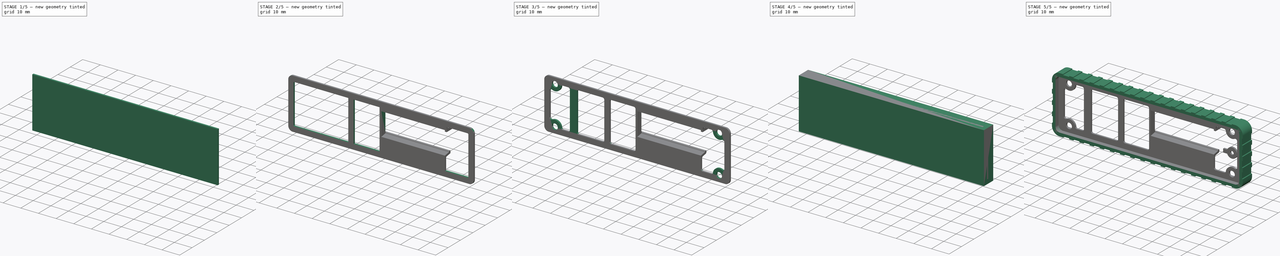
[diagram: build sequence overview — one tinted view per stage of 5, left to right]
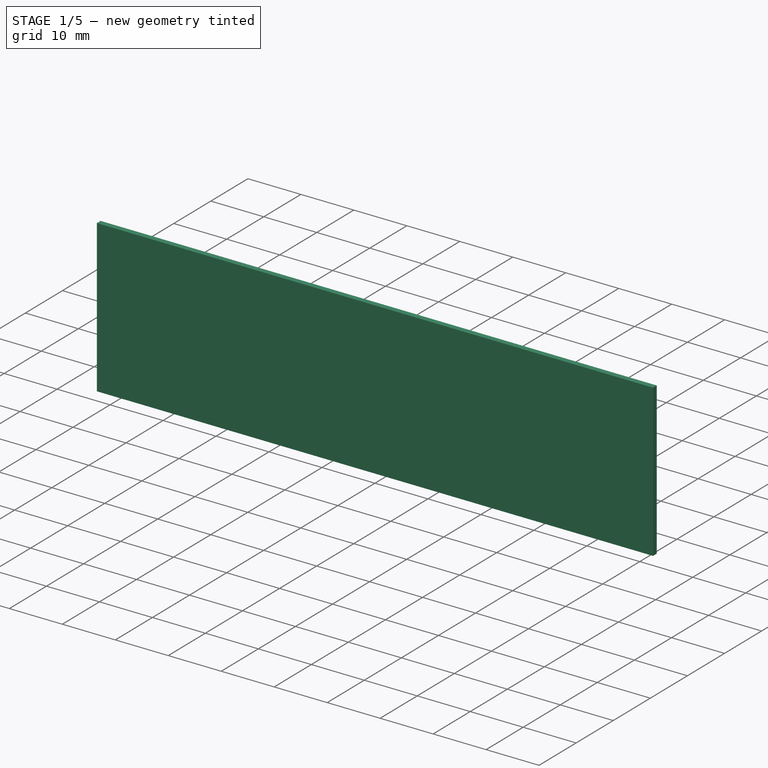
[diagram: stage 1 of 5 — iso view after this stage's code; geometry added in this stage tinted green]
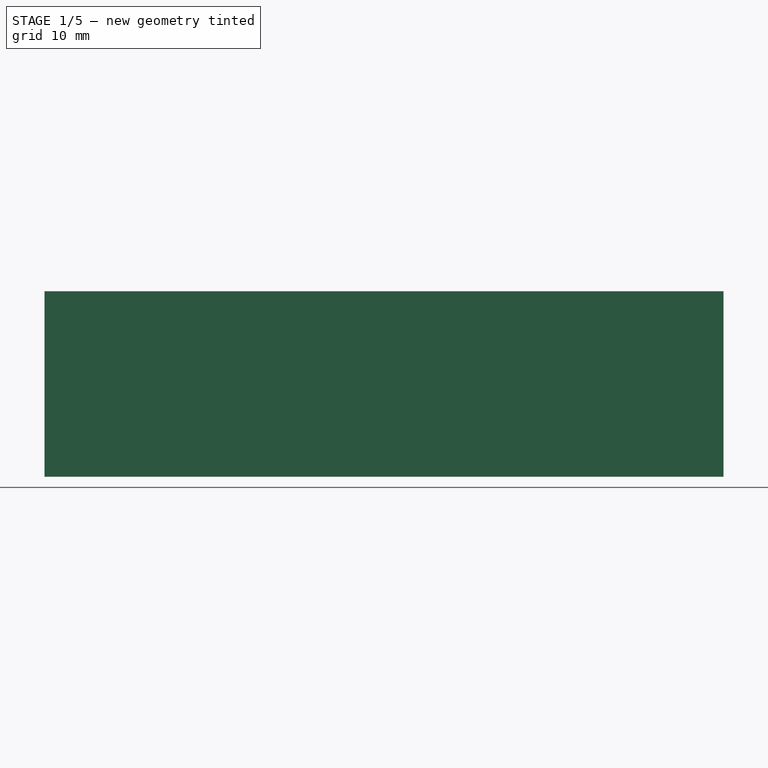
[diagram: stage 1 of 5 — front view after this stage's code; geometry added in this stage tinted green]
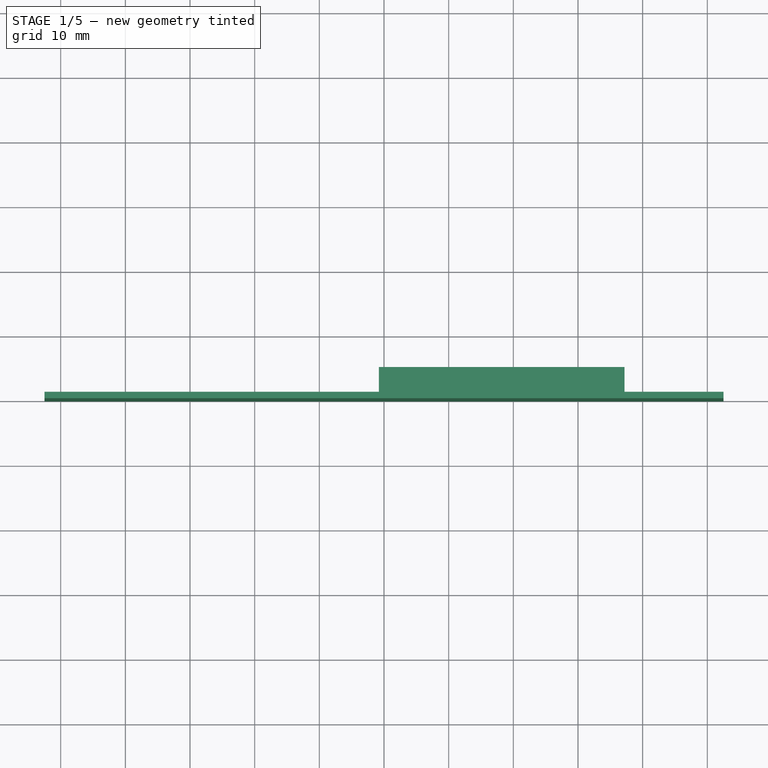
[diagram: stage 1 of 5 — top view after this stage's code; geometry added in this stage tinted green]
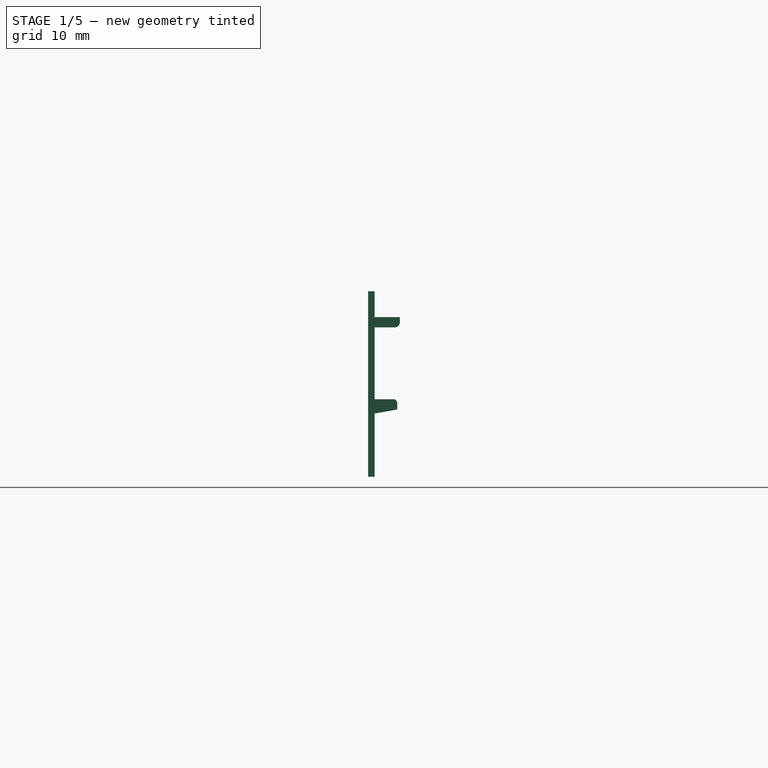
[diagram: stage 1 of 5 — right view after this stage's code; geometry added in this stage tinted green]
FCSTD DOCUMENT  (FreeCAD 0.19R24267 +99 (Git))
Label: OTP20_Case_Bezel
License: All rights reserved
LicenseURL: http://en.wikipedia.org/wiki/All_rights_reserved
objects: Sketcher::SketchObject×15, PartDesign::Pad×13, PartDesign::Body×5, PartDesign::Fillet×5, PartDesign::Plane×4, PartDesign::LinearPattern×4, PartDesign::Mirrored×3, PartDesign::MultiTransform×3, PartDesign::Thickness×2, PartDesign::Pocket×2, PartDesign::Hole×2, PartDesign::CoordinateSystem×1, PartDesign::Boolean×1, PartDesign::Chamfer×1, App::Part×1
note: 86 computed .brp shape members not serialized (recipe doc carries the construction recipe); baked Part::Feature solids carry a one-line shape summary decoded from their .brp

FEATURE [PartDesign::Plane] DatumPlane001  label="Display Start"
  AttachmentOffset = pos=(0,0,0.2) rot=(0,0,1;0rad)
  Length = 60
  MapMode = 5
  Placement = pos=(0.2,0,0) rot=(0.57735,0.57735,0.57735;2.0944rad)
  ResizeMode = 0
  Support = -> [YZ_Plane004]
  Width = 60
FEATURE [Sketcher::SketchObject] Sketch006  label="Sketch007"
  FullyConstrained = true
  MapMode = 5
  Placement = pos=(0.2,0,0) rot=(0.57735,0.57735,0.57735;2.0944rad)
  Support = -> [DatumPlane001]
  sketch-geometry (7):
    g0: LineSegment StartX=1 StartY=14.35 StartZ=0 EndX=1 EndY=10.35 EndZ=0
    g1: ArcOfCircle CenterX=4.1 CenterY=9.55 CenterZ=0 NormalX=0 NormalY=0 NormalZ=1 AngleXU=0 Radius=0.8 StartAngle=3.14159 EndAngle=6.28319
    g2: LineSegment StartX=3.3 StartY=9.55 StartZ=0 EndX=0 EndY=9.55 EndZ=0
    g3: LineSegment StartX=0 StartY=9.55 StartZ=0 EndX=0 EndY=14.35 EndZ=0
    g4: LineSegment StartX=0 StartY=14.35 StartZ=0 EndX=1 EndY=14.35 EndZ=0
    g5: LineSegment StartX=1 StartY=10.35 StartZ=0 EndX=4.9 EndY=10.35 EndZ=0
    g6: LineSegment StartX=4.9 StartY=10.35 StartZ=0 EndX=4.9 EndY=9.55 EndZ=0
  constraints (22):
    c: Vertical(g0)
    c: Coincident(g2,g3)
    c: Coincident(g3,g4)
    c: Coincident(g4,g0)
    c: Distance(g4) = 1
    c: Horizontal(g4)
    c: Radius(g1) = 0.8
    c: DistanceY(g0) = 14.35
    c: Horizontal(g1,g1)
    c: Horizontal(g1,g1)
    c: Vertical(g3)
    c: Horizontal(g2)
    c: Coincident(g0,g5)
    c: Horizontal(g5)
    c: Coincident(g5,g6)
    c: Coincident(g6,g1)
    c: Vertical(g6)
    c: Distance(g6) = 0.8
    c: Coincident(g2,g1)
    c: DistanceX(g1) = 3.3
    c: PointOnObject(g2,g-2)
    c: DistanceY(g1) = 9.55
FEATURE [Sketcher::SketchObject] Sketch007  label="Sketch008"
  FullyConstrained = true
  MapMode = 5
  Placement = pos=(0.2,0,0) rot=(0.57735,0.57735,0.57735;2.0944rad)
  Support = -> [DatumPlane001]
  sketch-geometry (7):
    g0: LineSegment StartX=1 StartY=-14.35 StartZ=0 EndX=1 EndY=-4.56714 EndZ=0
    g1: LineSegment StartX=1 StartY=-4.56714 StartZ=0 EndX=4.5 EndY=-3.95 EndZ=0
    g2: LineSegment StartX=4.5 StartY=-3.95 StartZ=0 EndX=4.5 EndY=-2.95 EndZ=0
    g3: ArcOfCircle CenterX=3.9 CenterY=-2.95 CenterZ=0 NormalX=0 NormalY=0 NormalZ=1 AngleXU=0 Radius=0.6 StartAngle=0 EndAngle=3.14159
    g4: LineSegment StartX=3.3 StartY=-2.95 StartZ=0 EndX=0 EndY=-3.53188 EndZ=0
    g5: LineSegment StartX=0 StartY=-3.53188 StartZ=0 EndX=0 EndY=-14.35 EndZ=0
    g6: LineSegment StartX=0 StartY=-14.35 StartZ=0 EndX=1 EndY=-14.35 EndZ=0
  constraints (21):
    c: Vertical(g0)
    c: Coincident(g0,g1)
    c: Coincident(g1,g2)
    c: Tangent(g2,g3) = -1.5708
    c: Coincident(g3,g4)
    c: PointOnObject(g4,g-2)
    c: Coincident(g4,g5)
    c: PointOnObject(g5,g-2)
    c: Coincident(g5,g6)
    c: Coincident(g6,g0)
    c: Horizontal(g6)
    c: Distance(g6) = 1
    c: Radius(g3) = 0.6
    c: Vertical(g2)
    c: Distance(g2) = 1
    c: DistanceX(g3) = 3.3
    c: DistanceY(g3) = -2.95
    c: DistanceY(g5) = -14.35
    c: Horizontal(g3,g3)
    c: Parallel(g4,g1)
    c: Angle(g-1,g4) = 0.174533
FEATURE [Sketcher::SketchObject] Sketch008  label="Sketch009"
  FullyConstrained = true
  MapMode = 5
  Placement = pos=(0.2,0,0) rot=(0.57735,0.57735,0.57735;2.0944rad)
  Support = -> [DatumPlane001]
  expr: Constraints[19] = Sketch006.Constraints[19] + Sketch006.Constraints[6]
  expr: Constraints[14] = Sketch006.Constraints[17]
  expr: Constraints[5] = Sketch006.Constraints[6]
  expr: Constraints[6] = Sketch006.Constraints[7]
  expr: Constraints[3] = Sketch006.Constraints[4]
  expr: Constraints[20] = Sketch006.Constraints[21]
  sketch-geometry (7):
    g0: LineSegment StartX=1 StartY=14.35 StartZ=0 EndX=1 EndY=10.35 EndZ=0
    g1: ArcOfCircle CenterX=4.1 CenterY=9.55 CenterZ=0 NormalX=0 NormalY=0 NormalZ=1 AngleXU=0 Radius=0.8 StartAngle=4.71239 EndAngle=6.28319
    g2: LineSegment StartX=0 StartY=8.75 StartZ=0 EndX=0 EndY=14.35 EndZ=0
    g3: LineSegment StartX=0 StartY=14.35 StartZ=0 EndX=1 EndY=14.35 EndZ=0
    g4: LineSegment StartX=1 StartY=10.35 StartZ=0 EndX=4.9 EndY=10.35 EndZ=0
    g5: LineSegment StartX=4.9 StartY=10.35 StartZ=0 EndX=4.9 EndY=9.55 EndZ=0
    g6: LineSegment StartX=0 StartY=8.75 StartZ=0 EndX=4.1 EndY=8.75 EndZ=0
  constraints (21):
    c: Vertical(g0)
    c: Coincident(g2,g3)
    c: Coincident(g3,g0)
    c: Distance(g3) = 1
    c: Horizontal(g3)
    c: Radius(g1) = 0.8
    c: DistanceY(g0) = 14.35
    c: Horizontal(g1,g1)
    c: Vertical(g2)
    c: Coincident(g0,g4)
    c: Horizontal(g4)
    c: Coincident(g4,g5)
    c: Coincident(g5,g1)
    c: Vertical(g5)
    c: Distance(g5) = 0.8
    c: PointOnObject(g2,g-2)
    c: Coincident(g6,g2)
    c: Horizontal(g6)
    c: Tangent(g1,g6) = -1.5708
    c: DistanceX(g1) = 4.1
    c: DistanceY(g1) = 9.55
FEATURE [PartDesign::Plane] DatumPlane002  label="Display End"
  AttachmentOffset = pos=(0,0,36) rot=(0,0,1;0rad)
  Length = 60
  MapMode = 5
  Placement = pos=(36.2,-4e-15,4e-15) rot=(0.57735,0.57735,0.57735;2.0944rad)
  ResizeMode = 0
  Support = -> [DatumPlane001]
  Width = 60
FEATURE [PartDesign::Pad] Pad006
  Direction = (1,1,1)
  Length = 36
  Length2 = 36
  Placement = pos=(0.2,0,0) rot=(0.57735,0.57735,0.57735;2.0944rad)
  Profile = -> Sketch006
  Refine = true
  Type = 3
  UpToFace = -> DatumPlane002 [Plane]
FEATURE [PartDesign::Pad] Pad007
  Direction = (1,1,1)
  Length = 36
  Length2 = 100
  Placement = pos=(0.2,0,0) rot=(0.57735,0.57735,0.57735;2.0944rad)
  Profile = -> Sketch007
  Refine = true
  Type = 3
  UpToFace = -> DatumPlane002 [Plane]
FEATURE [PartDesign::Pad] Pad008
  BaseFeature = -> Pad006
  Direction = (1,1,1)
  Length = 1
  Length2 = 100
  Placement = pos=(0.2,0,0) rot=(0.57735,0.57735,0.57735;2.0944rad)
  Profile = -> Sketch008
  Refine = true
  Reversed = true
  Type = 0
FEATURE [PartDesign::Plane] DatumPlane003  label="Display Symmetry"
  AttachmentOffset = pos=(0,0,18) rot=(0,0,1;0rad)
  Length = 60
  MapMode = 5
  Placement = pos=(18.2,-2e-15,2e-15) rot=(0.57735,0.57735,0.57735;2.0944rad)
  ResizeMode = 0
  Support = -> [DatumPlane001]
  Width = 60
  expr: .AttachmentOffset.Base.z = <<Display End>>.AttachmentOffset.Base[2] * 0.5
FEATURE [PartDesign::Mirrored] Mirrored002
  BaseFeature = -> Pad008
  MirrorPlane = -> DatumPlane003
  Originals = -> [Pad008]
  Placement = pos=(0.2,0,0) rot=(0.57735,0.57735,0.57735;2.0944rad)
  Refine = true
FEATURE [PartDesign::Body] Body003  label="Display Frame Top"
  Group = -> [Sketch006,Pad006,Sketch008,Pad008,DatumPlane001,DatumPlane002,DatumPlane003,Mirrored002]
  Origin = -> Origin004
  Tip = -> Mirrored002
FEATURE [Sketcher::SketchObject] Sketch009  label="Sketch010"
  FullyConstrained = true
  MapMode = 5
  Placement = pos=(0.2,0,0) rot=(0.57735,0.57735,0.57735;2.0944rad)
  Support = -> [DatumPlane001]
  expr: Constraints[4] = Sketch007.Constraints[14]
  expr: Constraints[2] = Sketch007.Constraints[12]
  expr: Constraints[5] = Sketch007.Constraints[11]
  expr: Constraints[6] = Sketch007.Constraints[20]
  expr: Constraints[11] = Sketch007.Constraints[15] + Sketch007.Constraints[12]
  expr: Constraints[13] = Sketch007.Constraints[16]
  expr: Constraints[19] = Sketch007.Constraints[17]
  sketch-geometry (7):
    g0: LineSegment StartX=1 StartY=-4.56714 StartZ=0 EndX=4.5 EndY=-3.95 EndZ=0
    g1: LineSegment StartX=4.5 StartY=-3.95 StartZ=0 EndX=4.5 EndY=-2.95 EndZ=0
    g2: ArcOfCircle CenterX=3.9 CenterY=-2.95 CenterZ=0 NormalX=0 NormalY=0 NormalZ=1 AngleXU=0 Radius=0.6 StartAngle=0 EndAngle=1.5708
    g3: LineSegment StartX=3.9 StartY=-2.35 StartZ=0 EndX=0 EndY=-2.35 EndZ=0
    g4: LineSegment StartX=0 StartY=-2.35 StartZ=0 EndX=0 EndY=-14.35 EndZ=0
    g5: LineSegment StartX=0 StartY=-14.35 StartZ=0 EndX=1 EndY=-14.35 EndZ=0
    g6: LineSegment StartX=1 StartY=-14.35 StartZ=0 EndX=1 EndY=-4.56714 EndZ=0
  constraints (20):
    c: Coincident(g0,g1)
    c: Tangent(g1,g2) = -1.5708
    c: Radius(g2) = 0.6
    c: Vertical(g1)
    c: Distance(g1) = 1
    c: DistanceX(g0) = 1
    c: Angle(g-1,g0) = 0.174533
    c: PointOnObject(g3,g-2)
    c: Horizontal(g3)
    c: Coincident(g3,g4)
    c: PointOnObject(g4,g-2)
    c: DistanceX(g2) = 3.9
    c: Tangent(g2,g3) = -1.5708
    c: DistanceY(g2) = -2.95
    c: Coincident(g4,g5)
    c: Horizontal(g5)
    c: Coincident(g5,g6)
    c: Coincident(g6,g0)
    c: Vertical(g6)
    c: DistanceY(g4) = -14.35
FEATURE [PartDesign::Pad] Pad009
  BaseFeature = -> Pad007
  Direction = (1,1,1)
  Length = 1
  Length2 = 100
  Placement = pos=(0.2,0,0) rot=(0.57735,0.57735,0.57735;2.0944rad)
  Profile = -> Sketch009
  Refine = true
  Reversed = true
  Type = 0
FEATURE [PartDesign::Body] Body001  label="Outer Frame"
  Group = -> [Pad001,Pad002,Fillet001,Thickness001,DatumPlane,Sketch,Pocket,MultiTransform,LinearPattern,Mirrored,Sketch001,Pocket001,MultiTransform001,LinearPattern001,Mirrored001,Sketch013]
  Origin = -> Origin001
  Tip = -> MultiTransform001
FEATURE [Sketcher::SketchObject] Sketch014
  FullyConstrained = true
  MapMode = 5
  Placement = pos=(0,0,0) rot=(1,0,0;1.5708rad)
  Support = -> [XZ_Plane]
  expr: Constraints[8] = Sketch012.Constraints[8]
  expr: Constraints[9] = Sketch012.Constraints[9]
  sketch-geometry (4):
    g0: LineSegment StartX=-52.5 StartY=-14.35 StartZ=0 EndX=52.5 EndY=-14.35 EndZ=0
    g1: LineSegment StartX=52.5 StartY=-14.35 StartZ=0 EndX=52.5 EndY=14.35 EndZ=0
    g2: LineSegment StartX=52.5 StartY=14.35 StartZ=0 EndX=-52.5 EndY=14.35 EndZ=0
    g3: LineSegment StartX=-52.5 StartY=14.35 StartZ=0 EndX=-52.5 EndY=-14.35 EndZ=0
  constraints (10):
    c: Coincident(g0,g1)
    c: Coincident(g1,g2)
    c: Coincident(g2,g3)
    c: Coincident(g3,g0)
    c: Horizontal(g0)
    c: Vertical(g1)
    c: Symmetric(g2,g0,g-1)
    c: Symmetric(g2,g1,g-2)
    c: Distance(g2) = 105
    c: Distance(g3) = 28.7
FEATURE [PartDesign::Pad] Pad
  Direction = (1,1,1)
  Length = 1
  Length2 = 100
  Placement = pos=(0,0,0) rot=(1,0,0;1.5708rad)
  Profile = -> Sketch014
  Refine = true
  Reversed = true
  Type = 0
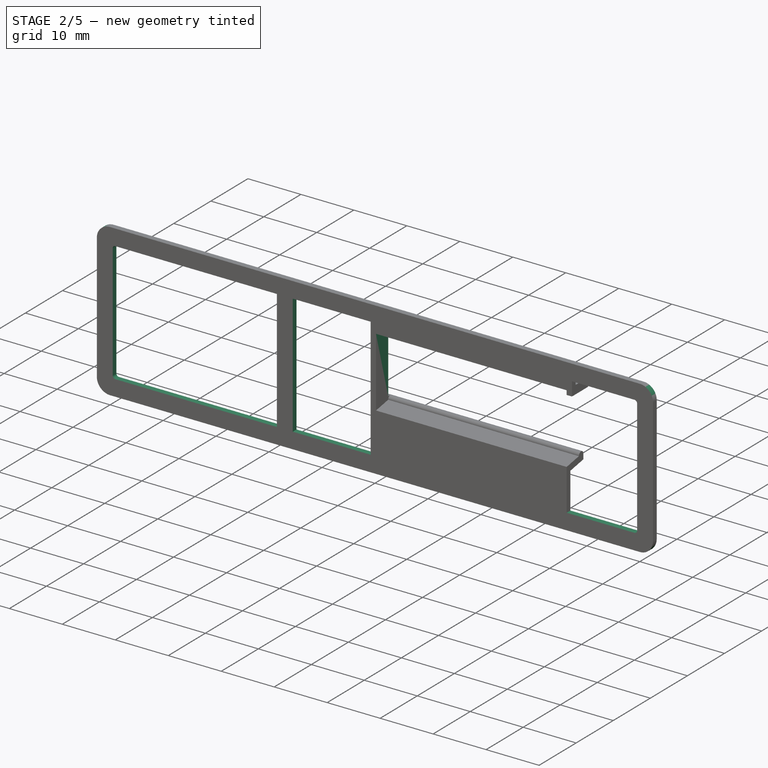
[diagram: stage 2 of 5 — iso view after this stage's code; geometry added in this stage tinted green]
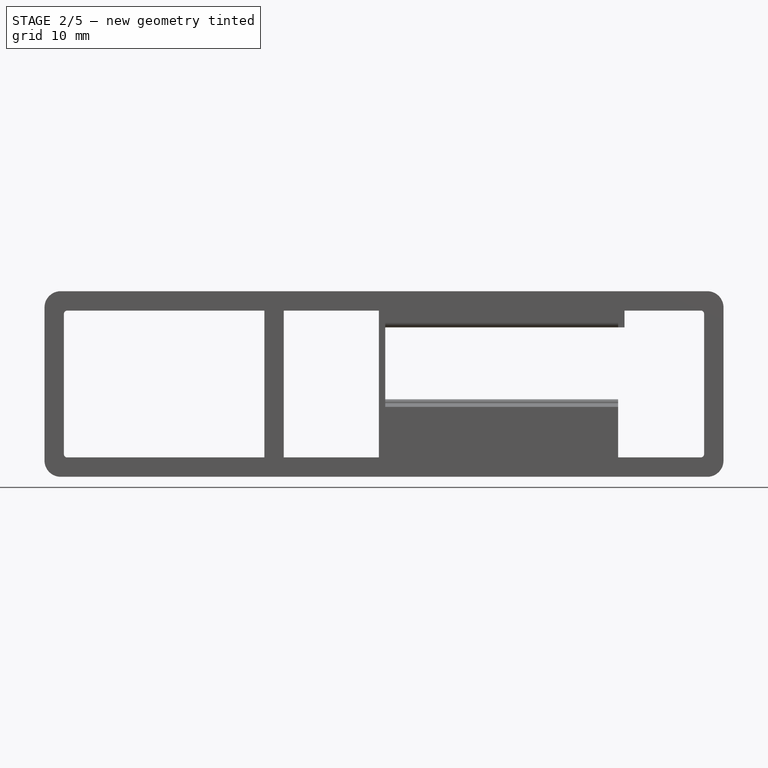
[diagram: stage 2 of 5 — front view after this stage's code; geometry added in this stage tinted green]
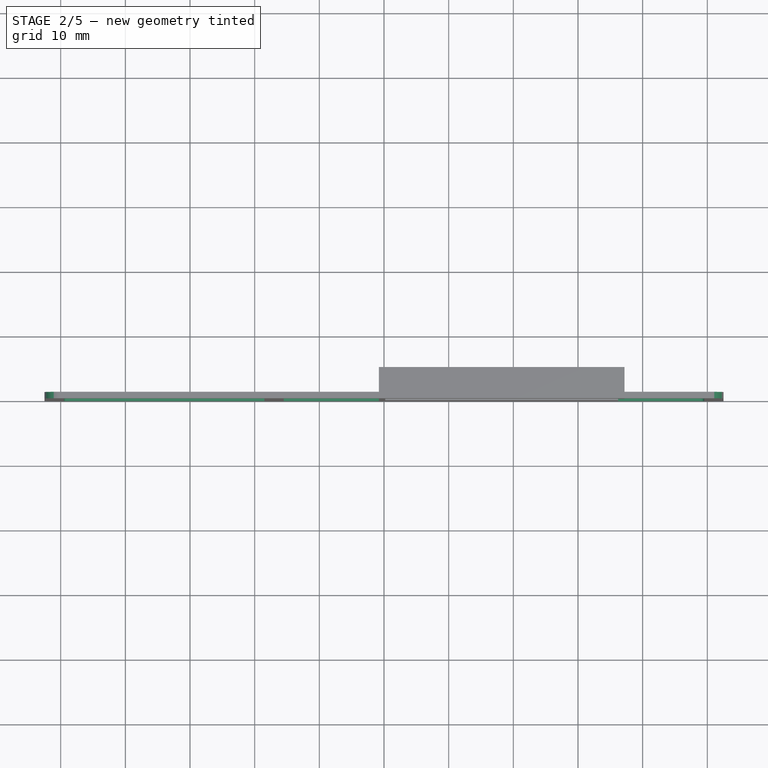
[diagram: stage 2 of 5 — top view after this stage's code; geometry added in this stage tinted green]
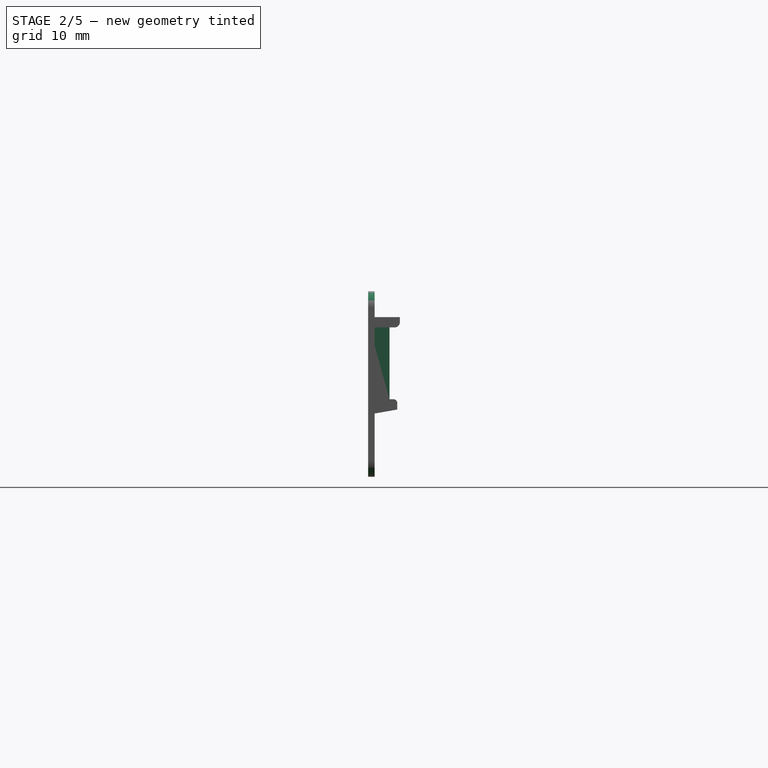
[diagram: stage 2 of 5 — right view after this stage's code; geometry added in this stage tinted green]
FEATURE [PartDesign::Thickness] Thickness
  Base = -> Pad [Face5,Face6]
  BaseFeature = -> Pad
  Intersection = false
  Join = 0
  Mode = 0
  Refine = true
  Reversed = true
  SupportTransform = false
  Value = 3
FEATURE [PartDesign::Fillet] Fillet
  Base = -> Thickness [Edge17,Edge19,Edge23,Edge24]
  BaseFeature = -> Thickness
  Radius = 0.5
  Refine = true
  SupportTransform = false
FEATURE [PartDesign::Fillet] Fillet003
  Base = -> Fillet [Edge32,Edge29,Edge34,Edge30]
  BaseFeature = -> Fillet
  Radius = 2.5
  Refine = true
  SupportTransform = false
FEATURE [PartDesign::Boolean] Boolean
  BaseFeature = -> Fillet003
  Group = -> [Body003,Body004]
  Refine = true
  Type = 0
FEATURE [PartDesign::Pad] Pad010
  BaseFeature = -> Boolean
  Direction = (1,1,1)
  Length = 1
  Length2 = 100
  Profile = -> Sketch010
  Refine = true
  Reversed = true
  Type = 0
FEATURE [PartDesign::Pad] Pad011
  BaseFeature = -> Pad010
  Direction = (1,1,1)
  Length = 1
  Length2 = 100
  Profile = -> Sketch011
  Refine = true
  Reversed = true
  Type = 0
  expr: Length = Pad.Length
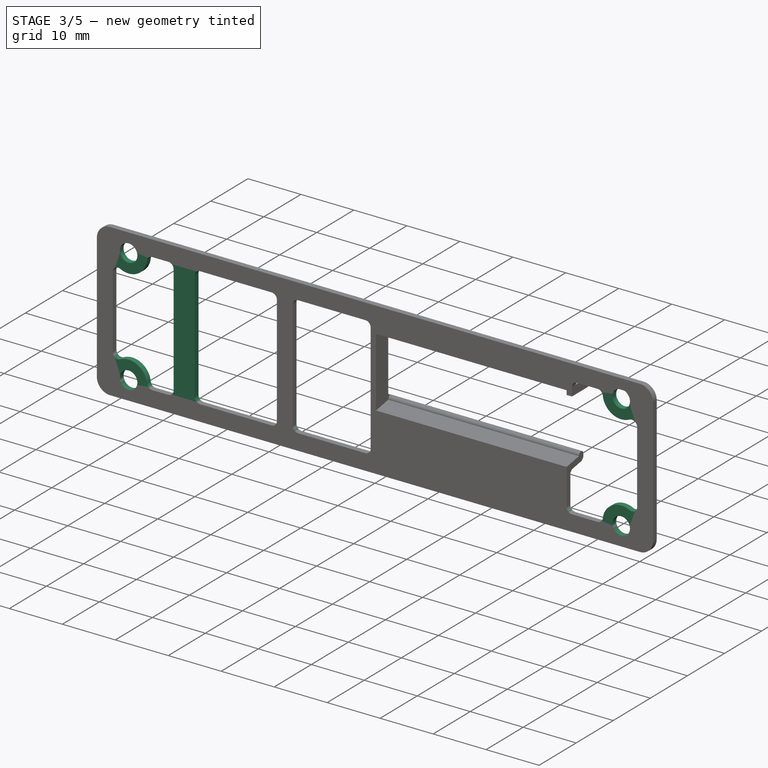
[diagram: stage 3 of 5 — iso view after this stage's code; geometry added in this stage tinted green]
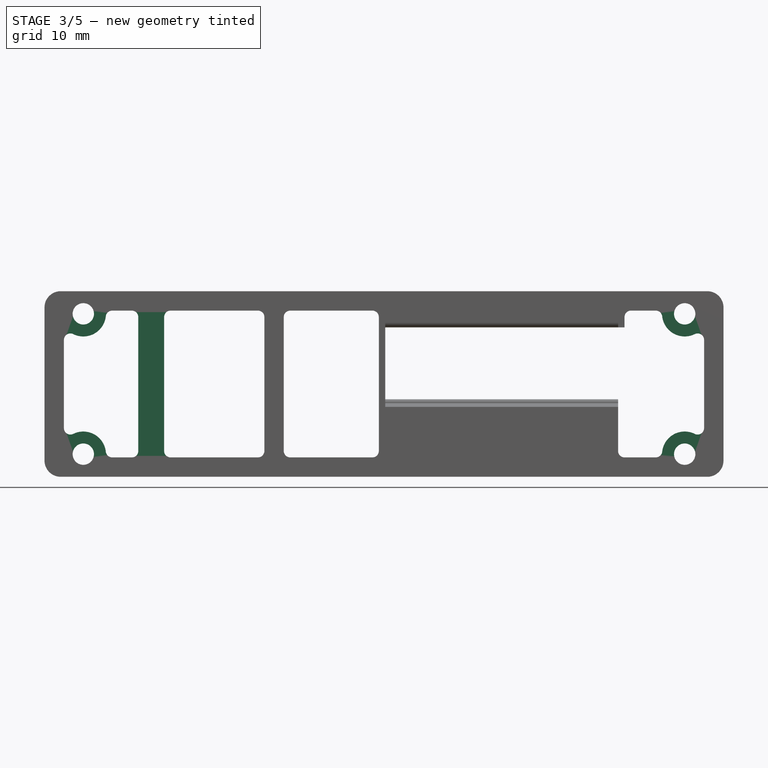
[diagram: stage 3 of 5 — front view after this stage's code; geometry added in this stage tinted green]
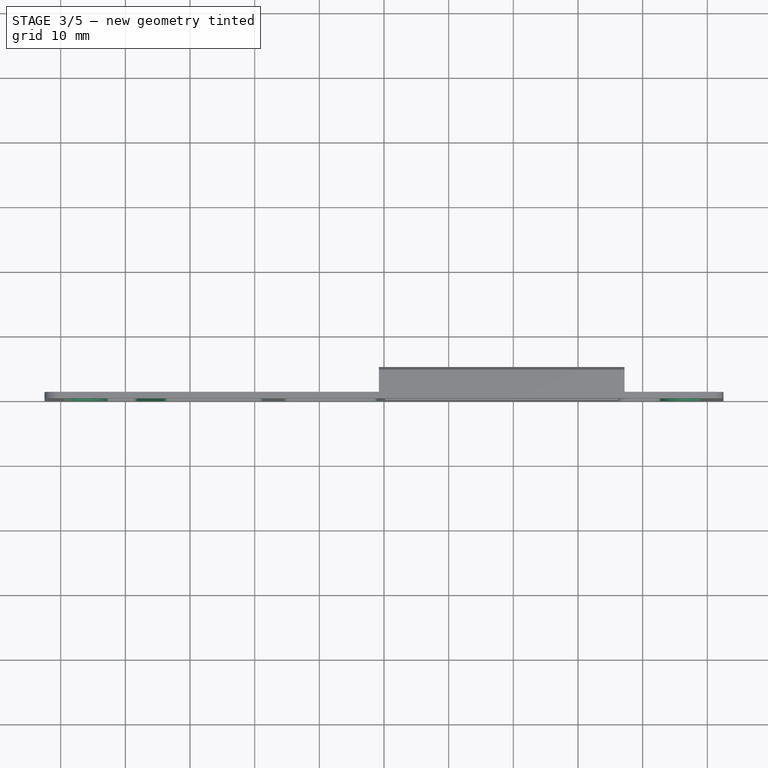
[diagram: stage 3 of 5 — top view after this stage's code; geometry added in this stage tinted green]
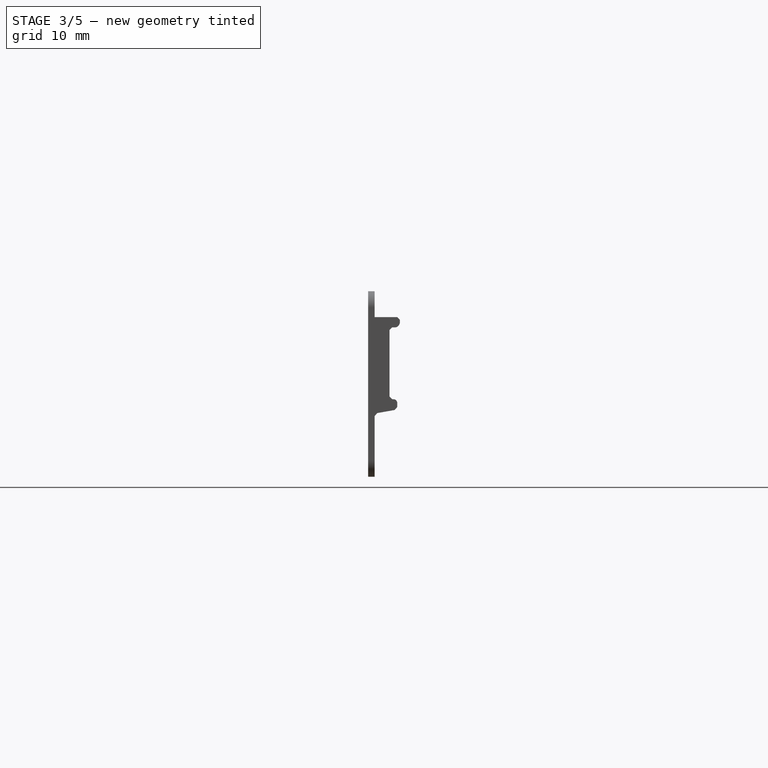
[diagram: stage 3 of 5 — right view after this stage's code; geometry added in this stage tinted green]
FEATURE [PartDesign::Chamfer] Chamfer001
  Angle = 45
  Base = -> Pad011 [Edge81,Edge80,Edge106,Edge104,Edge105]
  BaseFeature = -> Pad011
  ChamferType = 0
  FlipDirection = false
  Refine = true
  Size = 0.4
  Size2 = 1
  SupportTransform = false
FEATURE [PartDesign::Body] Body002  label="Button"
  Group = -> [Sketch004,Sketch005,Pad004,Pad005,Hole]
  Origin = -> Origin003
  Tip = -> Hole
FEATURE [Sketcher::SketchObject] Sketch015
  FullyConstrained = true
  MapMode = 5
  Placement = pos=(0,0,0) rot=(1,0,0;1.5708rad)
  Support = -> [XZ_Plane]
  sketch-geometry (5):
    g0: LineSegment StartX=-38 StartY=14.35 StartZ=0 EndX=-34 EndY=14.35 EndZ=0
    g1: LineSegment StartX=-34 StartY=14.35 StartZ=0 EndX=-34 EndY=-14.35 EndZ=0
    g2: LineSegment StartX=-34 StartY=-14.35 StartZ=0 EndX=-38 EndY=-14.35 EndZ=0
    g3: LineSegment StartX=-38 StartY=-14.35 StartZ=0 EndX=-38 EndY=14.35 EndZ=0
    g4: GeomPoint X=-36 Y=0 Z=0
  constraints (13):
    c: Coincident(g0,g1)
    c: Coincident(g1,g2)
    c: Coincident(g2,g3)
    c: Coincident(g3,g0)
    c: Horizontal(g0)
    c: Horizontal(g2)
    c: Vertical(g1)
    c: Vertical(g3)
    c: PointOnObject(g4,g-1)
    c: Symmetric(g0,g1,g4)
    c: DistanceX(g4) = -36
    c: Distance(g2) = 4
    c: Distance(g3) = 28.7
FEATURE [PartDesign::Pad] Pad012
  BaseFeature = -> Chamfer001
  Direction = (1,1,1)
  Length = 1
  Length2 = 100
  Profile = -> Sketch015
  Refine = true
  Reversed = true
  Type = 0
FEATURE [Sketcher::SketchObject] Sketch016
  FullyConstrained = true
  MapMode = 5
  Placement = pos=(0,0,0) rot=(1,0,0;1.5708rad)
  Support = -> [XZ_Plane]
  sketch-geometry (1):
    g0: Circle CenterX=46.5 CenterY=10.85 CenterZ=0 NormalX=0 NormalY=0 NormalZ=1 AngleXU=0 Radius=3.5
  constraints (3):
    c: Radius(g0) = 3.5
    c: DistanceX(g0) = 46.5
    c: DistanceY(g0) = 10.85
FEATURE [PartDesign::Pad] Pad013
  BaseFeature = -> Pad012
  Direction = (1,1,1)
  Length = 1
  Length2 = 100
  Profile = -> Sketch016
  Refine = true
  Reversed = true
  Type = 0
FEATURE [PartDesign::LinearPattern] LinearPattern002
  Direction = -> Z_Axis
  Length = 21.7
  Occurrences = 2
  Refine = true
  Reversed = true
FEATURE [PartDesign::LinearPattern] LinearPattern003
  Direction = -> X_Axis
  Length = 93
  Occurrences = 2
  Refine = true
  Reversed = true
FEATURE [PartDesign::Hole] Hole001
  BaseFeature = -> Pad013
  Depth = 25
  DepthType = 1
  Diameter = 3.3
  DrillForDepth = false
  DrillPoint = 1
  DrillPointAngle = 118
  HoleCutCountersinkAngle = 90
  HoleCutCustomValues = false
  HoleCutDepth = 0
  HoleCutDiameter = 6.1
  HoleCutType = 0
  ModelActualThread = false
  Profile = -> Sketch016
  Refine = true
  Tapered = false
  TaperedAngle = 90
  ThreadAngle = 0
  ThreadClass = 0
  ThreadCutOffInner = 0
  ThreadCutOffOuter = 0
  ThreadDirection = 0
  ThreadFit = 0
  ThreadPitch = 0
  ThreadSize = 0
  ThreadType = 0
  Threaded = false
FEATURE [PartDesign::MultiTransform] MultiTransform002
  BaseFeature = -> Hole001
  Originals = -> [Pad013,Hole001]
  Refine = true
  Transformations = -> [LinearPattern002,LinearPattern003]
FEATURE [PartDesign::Fillet] Fillet004
  Base = -> MultiTransform002 [Edge148,Edge157,Edge160,Edge151,Edge149,Edge146,Edge140,Edge142,Edge143,Edge138,Edge70,Edge81,Edge61,Edge63,Edge87,Edge91,Edge89,Edge122,Edge121,Edge92]
  BaseFeature = -> MultiTransform002
  Radius = 1
  Refine = true
  SupportTransform = false
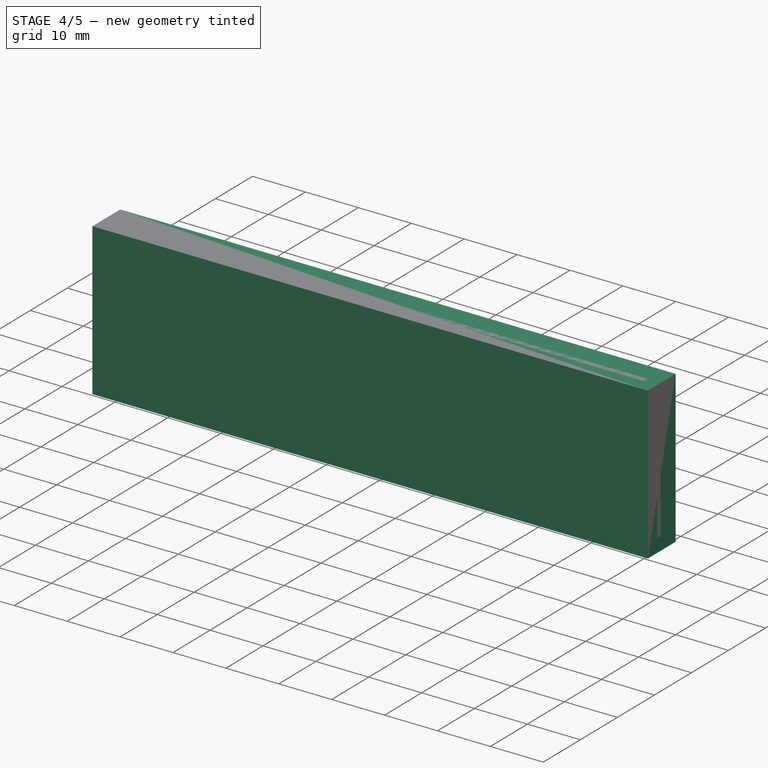
[diagram: stage 4 of 5 — iso view after this stage's code; geometry added in this stage tinted green]
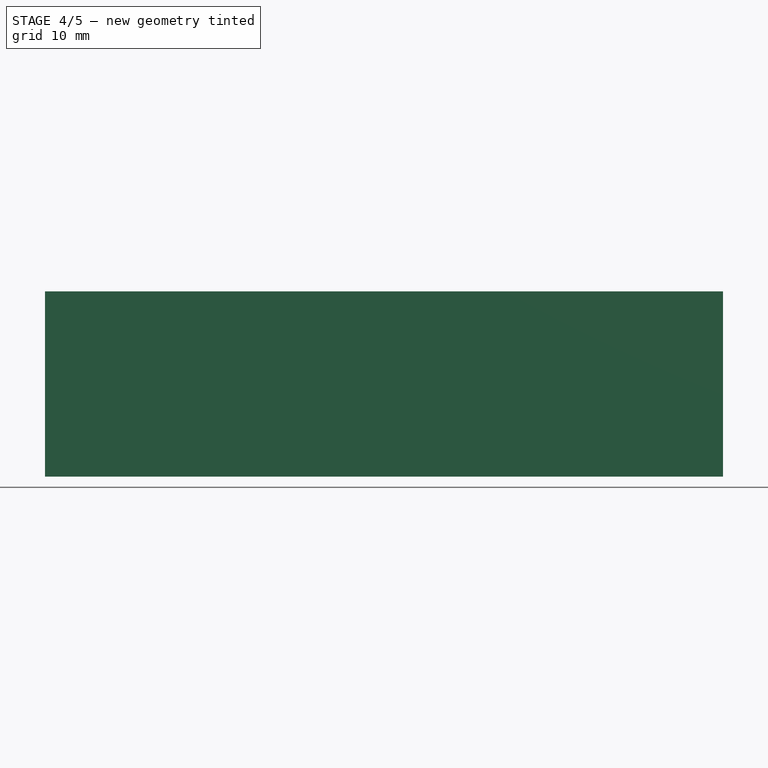
[diagram: stage 4 of 5 — front view after this stage's code; geometry added in this stage tinted green]
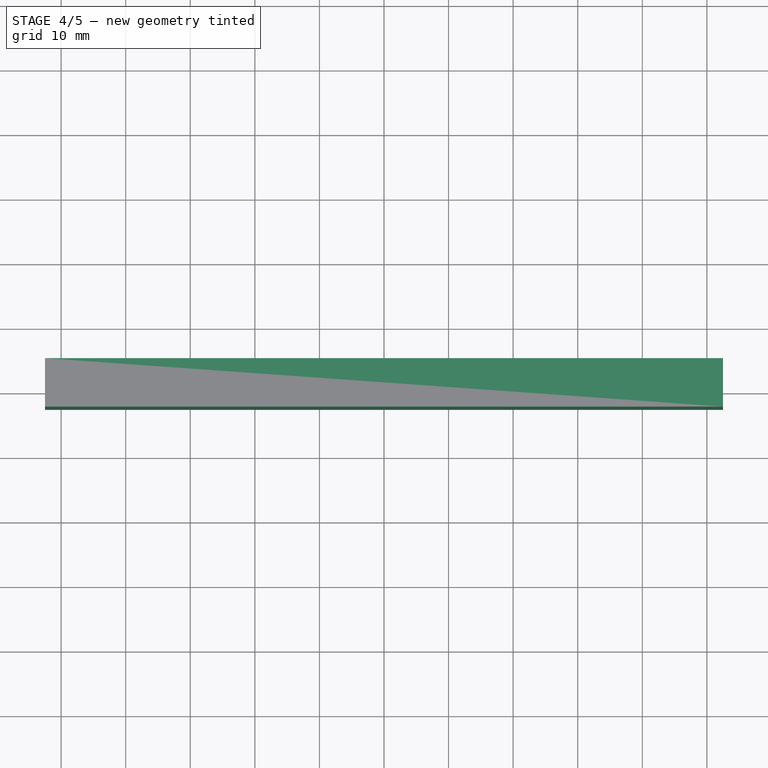
[diagram: stage 4 of 5 — top view after this stage's code; geometry added in this stage tinted green]
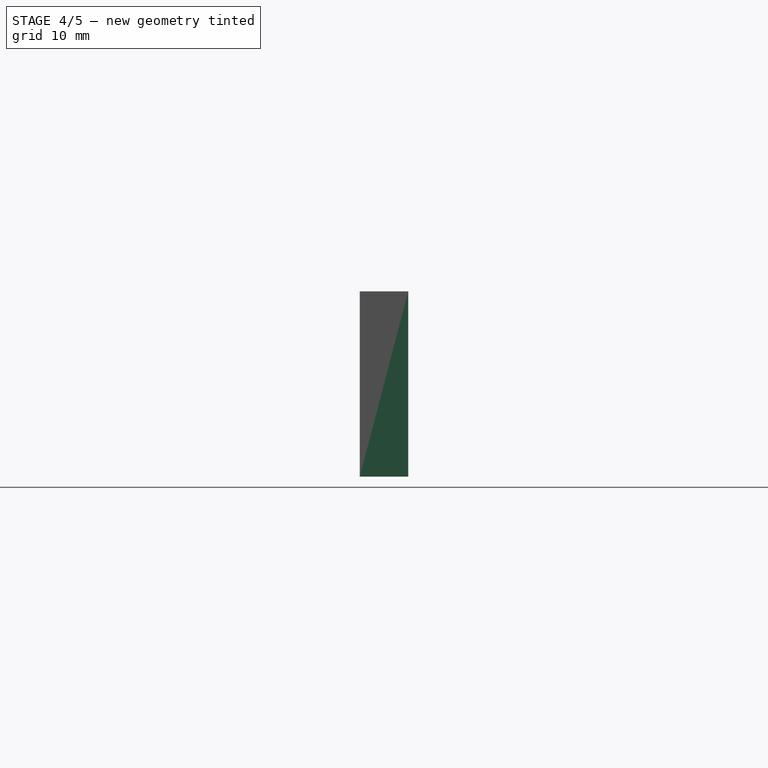
[diagram: stage 4 of 5 — right view after this stage's code; geometry added in this stage tinted green]
FEATURE [PartDesign::Plane] DatumPlane
  AttachmentOffset = pos=(0,0,2.5) rot=(0,0,1;0rad)
  Length = 60
  MapMode = 2
  Placement = pos=(0,-2.5,-6e-16) rot=(1,0,0;1.5708rad)
  ResizeMode = 0
  Support = -> [XZ_Plane001]
  Width = 60
  expr: .AttachmentOffset.Base.z = Pad002.Length
FEATURE [Sketcher::SketchObject] Sketch  label="Sketch001"
  FullyConstrained = true
  MapMode = 5
  Placement = pos=(0,-2.5,-6e-16) rot=(1,0,0;1.5708rad)
  Support = -> [DatumPlane]
  sketch-geometry (6):
    g0: LineSegment StartX=55 StartY=6.95 StartZ=0 EndX=55 EndY=10.45 EndZ=0
    g1: LineSegment StartX=55 StartY=10.45 StartZ=0 EndX=54.2 EndY=10.45 EndZ=0
    g2: ArcOfCircle CenterX=54.2 CenterY=10.25 CenterZ=0 NormalX=0 NormalY=0 NormalZ=1 AngleXU=0 Radius=0.2 StartAngle=1.5708 EndAngle=3.14159
    g3: LineSegment StartX=54 StartY=10.25 StartZ=0 EndX=54 EndY=7.15 EndZ=0
    g4: ArcOfCircle CenterX=54.2 CenterY=7.15 CenterZ=0 NormalX=0 NormalY=0 NormalZ=1 AngleXU=0 Radius=0.2 StartAngle=3.14159 EndAngle=4.71239
    g5: LineSegment StartX=54.2 StartY=6.95 StartZ=0 EndX=55 EndY=6.95 EndZ=0
  constraints (16):
    c: Vertical(g0)
    c: Coincident(g0,g1)
    c: Horizontal(g1)
    c: Tangent(g1,g2) = -1.5708
    c: Tangent(g3,g4) = -1.5708
    c: Coincident(g5,g0)
    c: Vertical(g3)
    c: Tangent(g4,g5) = -1.5708
    c: Tangent(g2,g3) = -1.5708
    c: Horizontal(g5)
    c: Vertical(g2,g4)
    c: Radius(g4) = 0.2
    c: Distance(g0,g3) = 1
    c: Distance(g0) = 3.5
    c: Distance(g-1,g5) = 6.95
    c: Distance(g-1,g3) = 54
FEATURE [PartDesign::LinearPattern] LinearPattern
  Direction = -> Sketch [V_Axis]
  Length = 17.4
  Occurrences = 4
  Refine = true
  Reversed = true
FEATURE [PartDesign::Mirrored] Mirrored
  MirrorPlane = -> Sketch [V_Axis]
  Refine = true
FEATURE [Sketcher::SketchObject] Sketch001  label="Sketch002"
  FullyConstrained = true
  MapMode = 5
  Placement = pos=(0,-2.5,-6e-16) rot=(1,0,0;1.5708rad)
  Support = -> [DatumPlane]
  sketch-geometry (6):
    g0: LineSegment StartX=44.65 StartY=16.85 StartZ=0 EndX=44.65 EndY=16.05 EndZ=0
    g1: ArcOfCircle CenterX=44.85 CenterY=16.05 CenterZ=0 NormalX=0 NormalY=0 NormalZ=1 AngleXU=0 Radius=0.2 StartAngle=3.14159 EndAngle=4.71239
    g2: LineSegment StartX=44.85 StartY=15.85 StartZ=0 EndX=47.95 EndY=15.85 EndZ=0
    g3: ArcOfCircle CenterX=47.95 CenterY=16.05 CenterZ=0 NormalX=0 NormalY=0 NormalZ=1 AngleXU=0 Radius=0.2 StartAngle=4.71239 EndAngle=6.28319
    g4: LineSegment StartX=48.15 StartY=16.05 StartZ=0 EndX=48.15 EndY=16.85 EndZ=0
    g5: LineSegment StartX=48.15 StartY=16.85 StartZ=0 EndX=44.65 EndY=16.85 EndZ=0
  constraints (16):
    c: Vertical(g0)
    c: Tangent(g0,g1) = -1.5708
    c: Tangent(g1,g2) = -1.5708
    c: Tangent(g2,g3) = -1.5708
    c: Tangent(g3,g4) = -1.5708
    c: Coincident(g4,g5)
    c: Coincident(g5,g0)
    c: Horizontal(g5)
    c: Horizontal(g2)
    c: Vertical(g4)
    c: Horizontal(g1,g3)
    c: Radius(g3) = 0.2
    c: Distance(g0,g2) = 1
    c: Distance(g5) = 3.5
    c: Distance(g-1,g2) = 15.85
    c: Distance(g-1,g0) = 44.65
FEATURE [PartDesign::LinearPattern] LinearPattern001
  Direction = -> Sketch001 [H_Axis]
  Length = 92.8
  Occurrences = 17
  Refine = true
  Reversed = true
FEATURE [PartDesign::Mirrored] Mirrored001
  MirrorPlane = -> Sketch001 [H_Axis]
  Refine = true
FEATURE [PartDesign::CoordinateSystem] LCS_0  label="LCS_Bezel_Center"
  AttacherType = Attacher::AttachEngine3D
  MapMode = 2
  Support = -> [X_Axis002]
FEATURE [Sketcher::SketchObject] Sketch004  label="Sketch005"
  FullyConstrained = true
  MapMode = 5
  Placement = pos=(0,0,0) rot=(1,0,0;1.5708rad)
  Support = -> [XZ_Plane003]
  sketch-geometry (1):
    g0: Circle CenterX=46.5 CenterY=0 CenterZ=0 NormalX=0 NormalY=0 NormalZ=1 AngleXU=0 Radius=2.9
  constraints (3):
    c: PointOnObject(g0,g-1)
    c: Radius(g0) = 2.9
    c: DistanceX(g0) = 46.5
FEATURE [Sketcher::SketchObject] Sketch005  label="Sketch006"
  FullyConstrained = true
  MapMode = 5
  Placement = pos=(0,0,0) rot=(1,0,0;1.5708rad)
  Support = -> [XZ_Plane003]
  sketch-geometry (5):
    g0: LineSegment StartX=41.5 StartY=1 StartZ=0 EndX=50.5 EndY=1 EndZ=0
    g1: LineSegment StartX=50.5 StartY=1 StartZ=0 EndX=50.5 EndY=-1 EndZ=0
    g2: LineSegment StartX=50.5 StartY=-1 StartZ=0 EndX=41.5 EndY=-1 EndZ=0
    g3: LineSegment StartX=41.5 StartY=-1 StartZ=0 EndX=41.5 EndY=1 EndZ=0
    g4: GeomPoint X=46 Y=0 Z=0
  constraints (13):
    c: Coincident(g0,g1)
    c: Coincident(g1,g2)
    c: Coincident(g2,g3)
    c: Coincident(g3,g0)
    c: Horizontal(g0)
    c: Horizontal(g2)
    c: Vertical(g1)
    c: Vertical(g3)
    c: PointOnObject(g4,g-1)
    c: Symmetric(g0,g1,g4)
    c: Distance(g1) = 2
    c: DistanceX(g0) = 50.5
    c: Distance(g2) = 9
FEATURE [PartDesign::Pad] Pad004
  Direction = (1,1,1)
  Length = 1
  Length2 = 100
  Placement = pos=(0,0,0) rot=(1,0,0;1.5708rad)
  Profile = -> Sketch005
  Refine = true
  Reversed = true
  Type = 0
FEATURE [PartDesign::Pad] Pad005
  BaseFeature = -> Pad004
  Direction = (1,1,1)
  Length = 1
  Length2 = 100
  Placement = pos=(0,0,0) rot=(1,0,0;1.5708rad)
  Profile = -> Sketch004
  Refine = true
  Reversed = true
  Type = 0
FEATURE [PartDesign::Body] Body004  label="Display Frame Bottom"
  Group = -> [Sketch007,Pad007,Pad009,Sketch009]
  Origin = -> Origin005
  Tip = -> Pad009
FEATURE [Sketcher::SketchObject] Sketch010  label="Sketch011"
  FullyConstrained = true
  MapMode = 5
  Placement = pos=(0.2,0,0) rot=(0.57735,0.57735,0.57735;2.0944rad)
  Support = -> [DatumPlane001]
  expr: Constraints[9] = Sketch007.Constraints[16]
  expr: Constraints[10] = Sketch006.Constraints[21]
  expr: Constraints[11] = Sketch006.Constraints[19]
  sketch-geometry (4):
    g0: LineSegment StartX=0 StartY=9.55 StartZ=0 EndX=3.3 EndY=9.55 EndZ=0
    g1: LineSegment StartX=3.3 StartY=9.55 StartZ=0 EndX=3.3 EndY=-2.95 EndZ=0
    g2: LineSegment StartX=3.3 StartY=-2.95 StartZ=0 EndX=0 EndY=-2.95 EndZ=0
    g3: LineSegment StartX=0 StartY=-2.95 StartZ=0 EndX=0 EndY=9.55 EndZ=0
  constraints (12):
    c: Coincident(g0,g1)
    c: Coincident(g1,g2)
    c: Coincident(g2,g3)
    c: Coincident(g3,g0)
    c: Horizontal(g0)
    c: Horizontal(g2)
    c: Vertical(g1)
    c: Vertical(g3)
    c: PointOnObject(g0,g-2)
    c: DistanceY(g1) = -2.95
    c: DistanceY(g0) = 9.55
    c: DistanceX(g0) = 3.3
FEATURE [Sketcher::SketchObject] Sketch011  label="Sketch012"
  FullyConstrained = true
  MapMode = 5
  Placement = pos=(0,0,0) rot=(1,0,0;1.5708rad)
  Support = -> [XZ_Plane]
  sketch-geometry (5):
    g0: LineSegment StartX=-18.5 StartY=13.7 StartZ=0 EndX=-15.5 EndY=13.7 EndZ=0
    g1: LineSegment StartX=-15.5 StartY=13.7 StartZ=0 EndX=-15.5 EndY=-13.7 EndZ=0
    g2: LineSegment StartX=-15.5 StartY=-13.7 StartZ=0 EndX=-18.5 EndY=-13.7 EndZ=0
    g3: LineSegment StartX=-18.5 StartY=-13.7 StartZ=0 EndX=-18.5 EndY=13.7 EndZ=0
    g4: GeomPoint X=-17 Y=0 Z=0
  constraints (13):
    c: Coincident(g0,g1)
    c: Coincident(g1,g2)
    c: Coincident(g2,g3)
    c: Coincident(g3,g0)
    c: Horizontal(g0)
    c: Horizontal(g2)
    c: Vertical(g1)
    c: Vertical(g3)
    c: PointOnObject(g4,g-1)
    c: Symmetric(g0,g1,g4)
    c: Distance(g3) = 27.4
    c: Distance(g2) = 3
    c: DistanceX(g4) = -17
FEATURE [Sketcher::SketchObject] Sketch012  label="Case Outline"
  FullyConstrained = true
  MapMode = 5
  Placement = pos=(0,0,0) rot=(1,0,0;1.5708rad)
  Support = -> [XZ_Plane002]
  sketch-geometry (4):
    g0: LineSegment StartX=-52.5 StartY=-14.35 StartZ=0 EndX=52.5 EndY=-14.35 EndZ=0
    g1: LineSegment StartX=52.5 StartY=-14.35 StartZ=0 EndX=52.5 EndY=14.35 EndZ=0
    g2: LineSegment StartX=52.5 StartY=14.35 StartZ=0 EndX=-52.5 EndY=14.35 EndZ=0
    g3: LineSegment StartX=-52.5 StartY=14.35 StartZ=0 EndX=-52.5 EndY=-14.35 EndZ=0
  constraints (10):
    c: Coincident(g0,g1)
    c: Coincident(g1,g2)
    c: Coincident(g2,g3)
    c: Coincident(g3,g0)
    c: Horizontal(g0)
    c: Vertical(g1)
    c: Symmetric(g2,g0,g-1)
    c: Symmetric(g2,g1,g-2)
    c: Distance(g2) = 105
    c: Distance(g3) = 28.7
FEATURE [Sketcher::SketchObject] Sketch013
  FullyConstrained = true
  MapMode = 5
  Placement = pos=(0,0,0) rot=(1,0,0;1.5708rad)
  Support = -> [XZ_Plane001]
  expr: Constraints[8] = Sketch012.Constraints[8]
  expr: Constraints[9] = Sketch012.Constraints[9]
  sketch-geometry (4):
    g0: LineSegment StartX=-52.5 StartY=-14.35 StartZ=0 EndX=52.5 EndY=-14.35 EndZ=0
    g1: LineSegment StartX=52.5 StartY=-14.35 StartZ=0 EndX=52.5 EndY=14.35 EndZ=0
    g2: LineSegment StartX=52.5 StartY=14.35 StartZ=0 EndX=-52.5 EndY=14.35 EndZ=0
    g3: LineSegment StartX=-52.5 StartY=14.35 StartZ=0 EndX=-52.5 EndY=-14.35 EndZ=0
  constraints (10):
    c: Coincident(g0,g1)
    c: Coincident(g1,g2)
    c: Coincident(g2,g3)
    c: Coincident(g3,g0)
    c: Horizontal(g0)
    c: Vertical(g1)
    c: Symmetric(g2,g0,g-1)
    c: Symmetric(g2,g1,g-2)
    c: Distance(g2) = 105
    c: Distance(g3) = 28.7
FEATURE [PartDesign::Pad] Pad001
  Direction = (1,1,1)
  Length = 5
  Length2 = 100
  Placement = pos=(0,0,0) rot=(1,0,0;1.5708rad)
  Profile = -> Sketch013
  Refine = true
  Reversed = true
  Type = 0
FEATURE [PartDesign::Pad] Pad002
  BaseFeature = -> Pad001
  Direction = (1,1,1)
  Length = 2.5
  Length2 = 100
  Placement = pos=(0,0,0) rot=(1,0,0;1.5708rad)
  Profile = -> Sketch013
  Refine = true
  Type = 0
FEATURE [PartDesign::Hole] Hole
  BaseFeature = -> Pad005
  Depth = 25
  DepthType = 1
  Diameter = 2
  DrillForDepth = false
  DrillPoint = 1
  DrillPointAngle = 118
  HoleCutCountersinkAngle = 90
  HoleCutCustomValues = false
  HoleCutDepth = 0
  HoleCutDiameter = 6.1
  HoleCutType = 0
  ModelActualThread = false
  Placement = pos=(0,0,0) rot=(1,0,0;1.5708rad)
  Profile = -> Sketch004
  Refine = true
  Tapered = false
  TaperedAngle = 90
  ThreadAngle = 0
  ThreadClass = 0
  ThreadCutOffInner = 0
  ThreadCutOffOuter = 0
  ThreadDirection = 0
  ThreadFit = 0
  ThreadPitch = 0
  ThreadSize = 0
  ThreadType = 0
  Threaded = false
FEATURE [PartDesign::Fillet] Fillet005
  Base = -> Fillet004 [Edge100,Edge113,Edge110]
  BaseFeature = -> Fillet004
  Radius = 0.2
  Refine = true
  SupportTransform = false
FEATURE [PartDesign::Body] Body  label="Inner Frame"
  Group = -> [Pad,Thickness,Fillet,Fillet003,Boolean,Sketch010,Pad010,Sketch011,Pad011,Chamfer001,Sketch014,Sketch015,Pad012,Sketch016,Pad013,Hole001,MultiTransform002,LinearPattern002,LinearPattern003,Fillet004,Fillet005]
  Origin = -> Origin
  Tip = -> Fillet005
FEATURE [App::Part] Bezel
  Group = -> [LCS_0,Body001,Body,Sketch012,Body002]
  Origin = -> Origin002
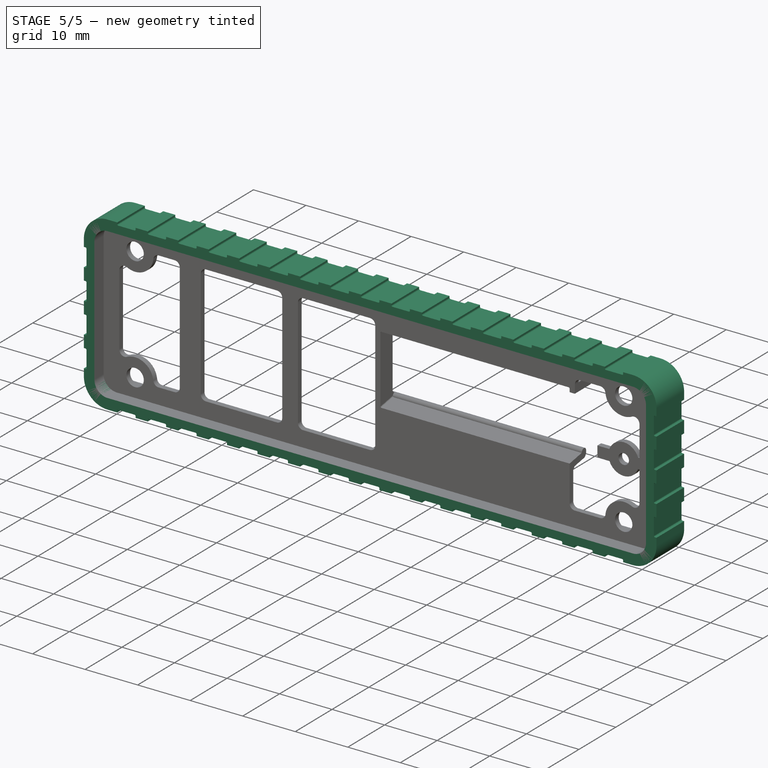
[diagram: stage 5 of 5 — iso view after this stage's code; geometry added in this stage tinted green]
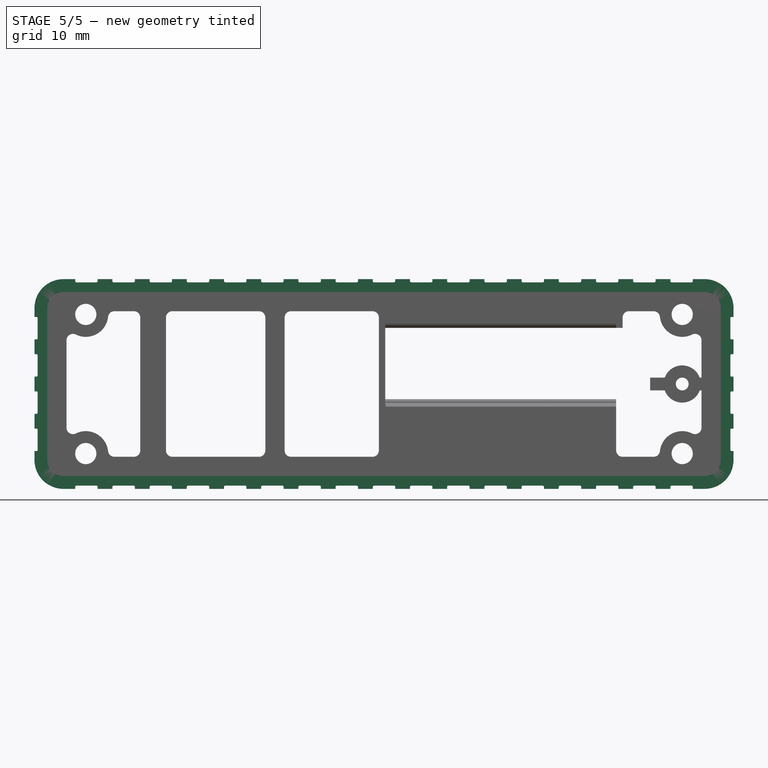
[diagram: stage 5 of 5 — front view after this stage's code; geometry added in this stage tinted green]
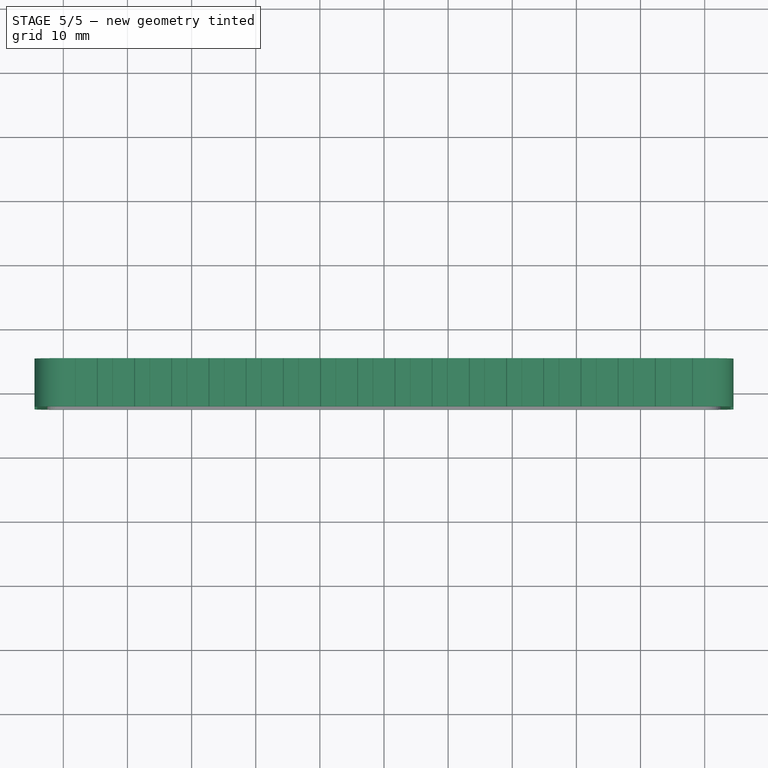
[diagram: stage 5 of 5 — top view after this stage's code; geometry added in this stage tinted green]
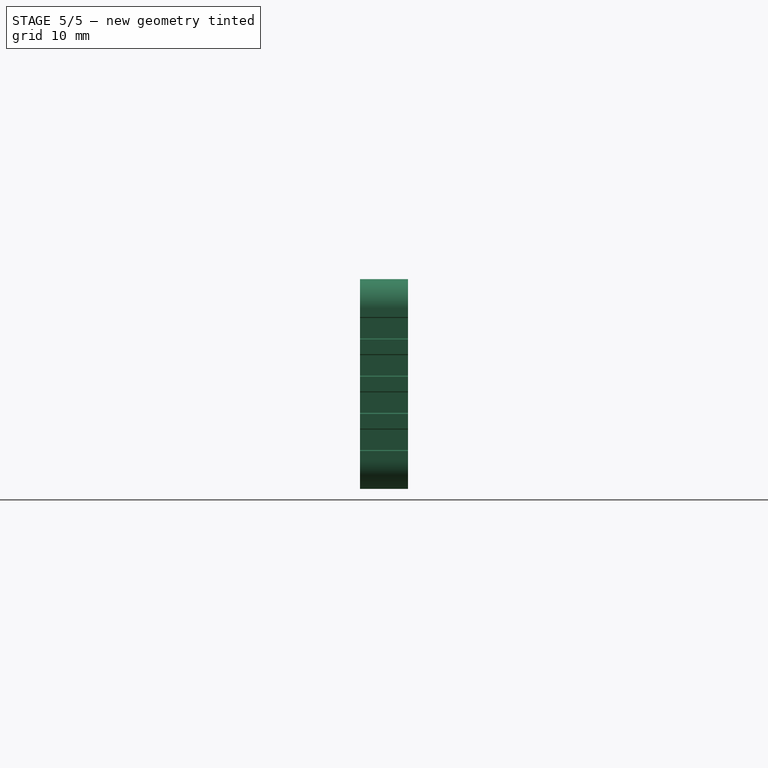
[diagram: stage 5 of 5 — right view after this stage's code; geometry added in this stage tinted green]
FEATURE [PartDesign::Fillet] Fillet001
  Base = -> Pad002 [Edge5,Edge12,Edge11,Edge7]
  BaseFeature = -> Pad002
  Placement = pos=(0,0,0) rot=(1,0,0;1.5708rad)
  Radius = 2.5
  Refine = true
  SupportTransform = false
FEATURE [PartDesign::Thickness] Thickness001
  Base = -> Fillet001 [Face10,Face1]
  BaseFeature = -> Fillet001
  Intersection = false
  Join = 0
  Mode = 0
  Refine = true
  SupportTransform = false
  Value = 2
FEATURE [PartDesign::Pocket] Pocket
  BaseFeature = -> Thickness001
  Length = 5
  Length2 = 100
  Profile = -> Sketch
  Refine = true
  Type = 1
FEATURE [PartDesign::MultiTransform] MultiTransform
  BaseFeature = -> Pocket
  Originals = -> [Pocket]
  Refine = true
  Transformations = -> [LinearPattern,Mirrored]
FEATURE [PartDesign::Pocket] Pocket001
  BaseFeature = -> MultiTransform
  Length = 5
  Length2 = 100
  Profile = -> Sketch001
  Refine = true
  Type = 1
FEATURE [PartDesign::MultiTransform] MultiTransform001
  BaseFeature = -> Pocket001
  Originals = -> [Pocket001]
  Refine = true
  Transformations = -> [LinearPattern001,Mirrored001]
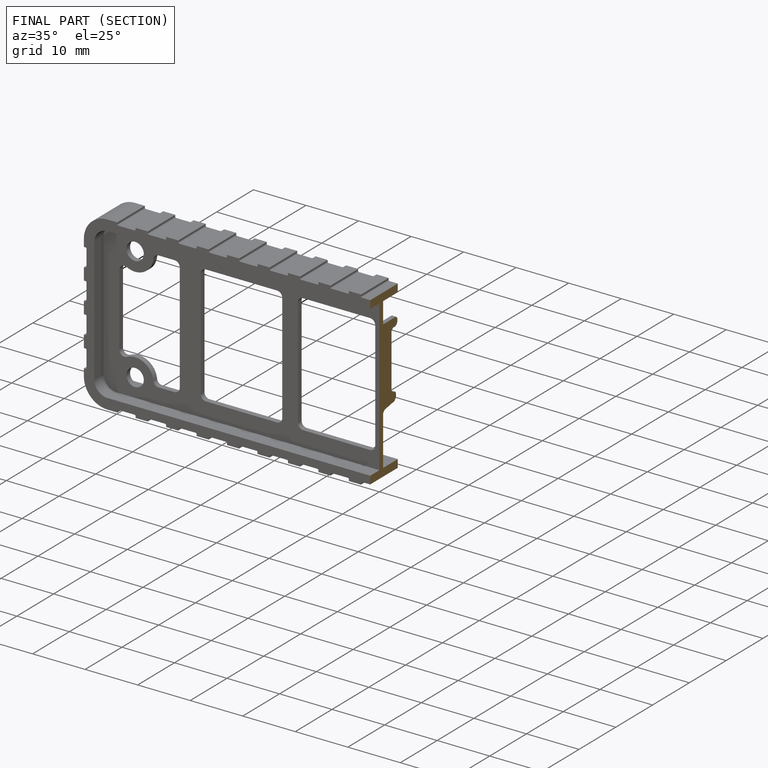
[diagram: finished part — half-section view (interior)]
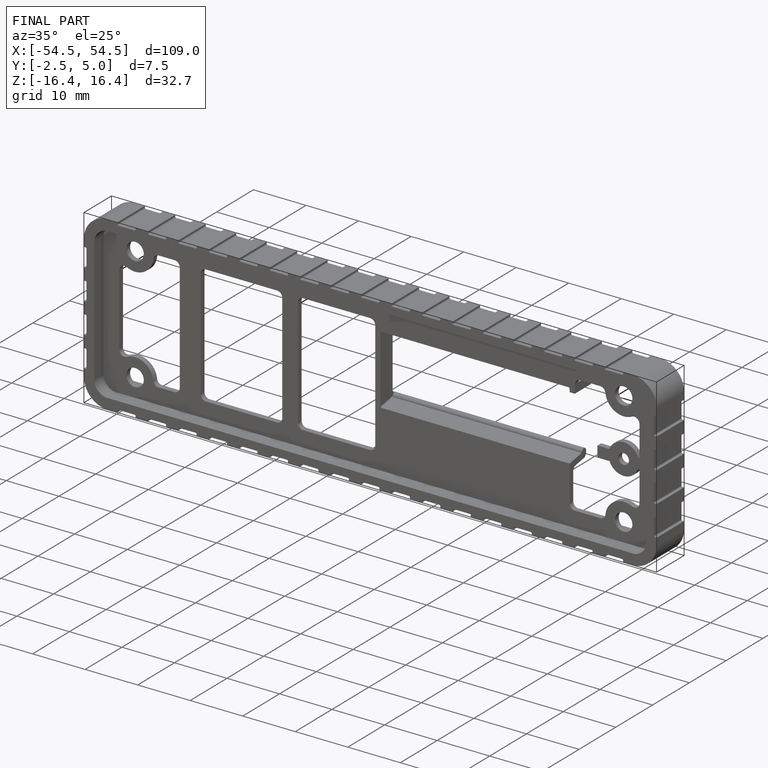
[diagram: finished part — iso view with bounding-box wireframe]
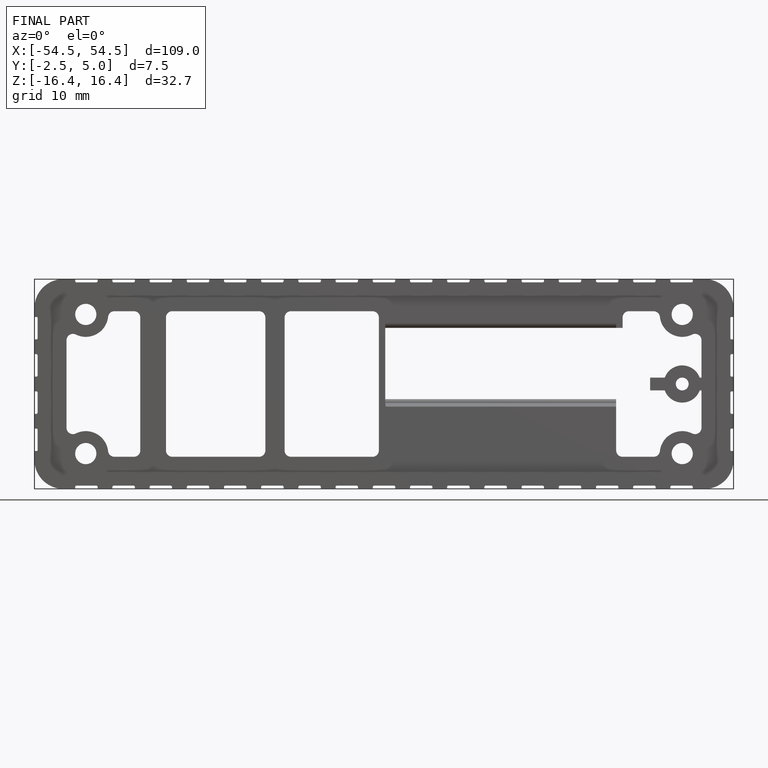
[diagram: finished part — front view with bounding-box wireframe]
